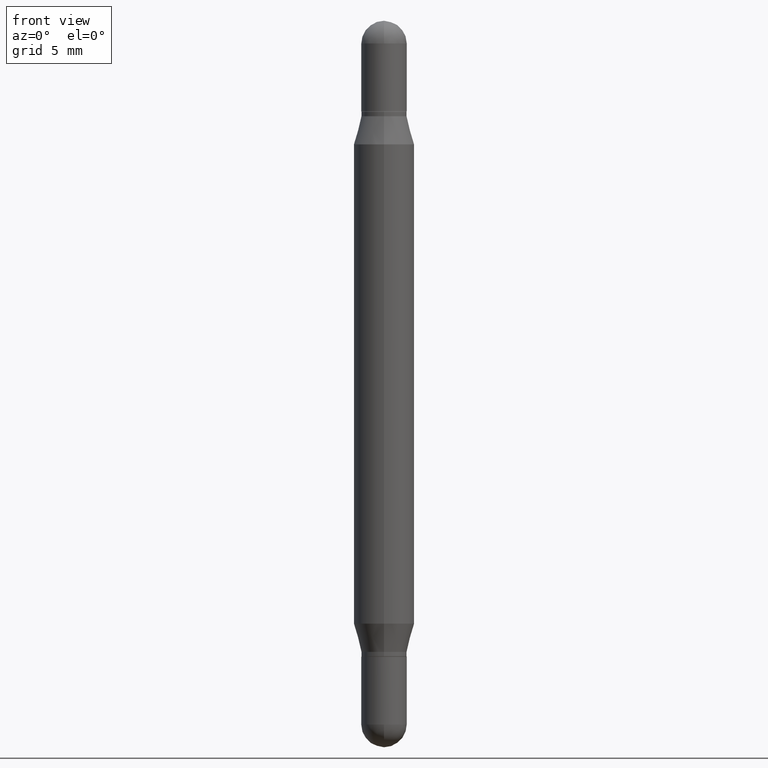
[diagram: clean part render]
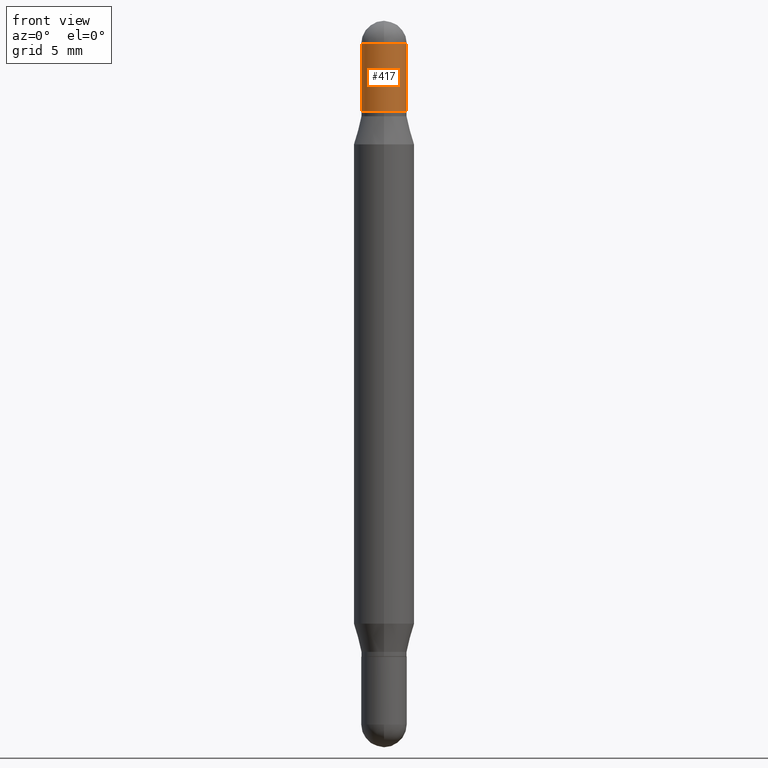
[diagram: same view with one face highlighted and labeled with its STEP entity id]
A machine part, front view. The second image highlights one B-rep face of the part: STEP entity #417.
In plain terms, the highlighted cylindrical surface (edge-blend (fillet) strip) has radius 1.1913 mm, axis along (-0, -0, -1).
Its self-contained STEP definition (entity closure, byte-faithful):
#23 = AXIS2_PLACEMENT_3D ( 'NONE', #565, #1098, #299 ) ;
#24 = LINE ( 'NONE', #369, #956 ) ;
#35 = DIRECTION ( 'NONE',  ( -2.445468806185136597E-29, -3.479614466977828254E-15, -1.000000000000000000 ) ) ;
#166 = VERTEX_POINT ( 'NONE', #896 ) ;
#175 = CARTESIAN_POINT ( 'NONE',  ( 3.210900542521084585E-29, -6.595880592238425060E-16, -0.1870000000000002216 ) ) ;
#210 = CARTESIAN_POINT ( 'NONE',  ( 0.04689999999999999725, -7.433420153955320943E-16, -0.04690000000000053154 ) ) ;
#211 = DIRECTION ( 'NONE',  ( -2.445468806185136877E-29, -3.479614466977828648E-15, -1.000000000000000000 ) ) ;
#228 = CIRCLE ( 'NONE', #436, 0.04689999999999999725 ) ;
#243 = VERTEX_POINT ( 'NONE', #566 ) ;
#290 = CIRCLE ( 'NONE', #882, 0.04689999999999999725 ) ;
#293 = EDGE_CURVE ( 'NONE', #843, #887, #24, .T. ) ;
#299 = DIRECTION ( 'NONE',  ( 1.000000000000000000, -6.982962677686266711E-15, 0.000000000000000000 ) ) ;
#319 = FACE_OUTER_BOUND ( 'NONE', #527, .T. ) ;
#328 = LINE ( 'NONE', #1092, #353 ) ;
#350 = DIRECTION ( 'NONE',  ( 1.000000000000000000, -6.982962677686266711E-15, 0.000000000000000000 ) ) ;
#353 = VECTOR ( 'NONE', #1010, 39.37007874015748143 ) ;
#356 = EDGE_CURVE ( 'NONE', #166, #599, #328, .T. ) ;
#359 = CARTESIAN_POINT ( 'NONE',  ( 3.553510722267622201E-29, -1.720940724002502970E-16, -0.04690000000000053154 ) ) ;
#369 = CARTESIAN_POINT ( 'NONE',  ( 0.04689999999999999725, -5.555822803949218252E-15, -1.500000000000000444 ) ) ;
#396 = ORIENTED_EDGE ( 'NONE', *, *, #1115, .T. ) ;
#404 = AXIS2_PLACEMENT_3D ( 'NONE', #1083, #35, #1069 ) ;
#412 = ORIENTED_EDGE ( 'NONE', *, *, #293, .F. ) ;
#417 = ADVANCED_FACE ( 'NONE', ( #319 ), #1101, .T. ) ;
#436 = AXIS2_PLACEMENT_3D ( 'NONE', #175, #1027, #350 ) ;
#472 = CARTESIAN_POINT ( 'NONE',  ( -0.04689999999999999725, -9.408370971656158891E-17, -0.1870000000000002216 ) ) ;
#527 = EDGE_LOOP ( 'NONE', ( #778, #625, #396, #412, #1051 ) ) ;
#565 = CARTESIAN_POINT ( 'NONE',  ( 3.553510722267622201E-29, -1.720940724002502970E-16, -0.04690000000000053154 ) ) ;
#566 = CARTESIAN_POINT ( 'NONE',  ( -3.275009495834508474E-16, -0.04690000000000024011, -0.04690000000000036501 ) ) ;
#574 = EDGE_CURVE ( 'NONE', #243, #843, #290, .T. ) ;
#599 = VERTEX_POINT ( 'NONE', #472 ) ;
#625 = ORIENTED_EDGE ( 'NONE', *, *, #356, .T. ) ;
#665 = CIRCLE ( 'NONE', #23, 0.04689999999999999725 ) ;
#707 = DIRECTION ( 'NONE',  ( 2.445468806185136597E-29, 3.479614466977828254E-15, 1.000000000000000000 ) ) ;
#757 = CARTESIAN_POINT ( 'NONE',  ( 0.04689999999999999725, -9.870890088073285070E-16, -0.1870000000000002216 ) ) ;
#778 = ORIENTED_EDGE ( 'NONE', *, *, #851, .F. ) ;
#843 = VERTEX_POINT ( 'NONE', #210 ) ;
#851 = EDGE_CURVE ( 'NONE', #166, #243, #665, .T. ) ;
#882 = AXIS2_PLACEMENT_3D ( 'NONE', #359, #707, #886 ) ;
#886 = DIRECTION ( 'NONE',  ( 1.000000000000000000, -6.982962677686266711E-15, 0.000000000000000000 ) ) ;
#887 = VERTEX_POINT ( 'NONE', #757 ) ;
#896 = CARTESIAN_POINT ( 'NONE',  ( -0.04689999999999999725, -9.408370971656128076E-17, -0.04690000000000053154 ) ) ;
#956 = VECTOR ( 'NONE', #211, 39.37007874015748143 ) ;
#1010 = DIRECTION ( 'NONE',  ( -2.445468806185136877E-29, -3.479614466977828648E-15, -1.000000000000000000 ) ) ;
#1027 = DIRECTION ( 'NONE',  ( 2.445468806185136597E-29, 3.479614466977828254E-15, 1.000000000000000000 ) ) ;
#1051 = ORIENTED_EDGE ( 'NONE', *, *, #574, .F. ) ;
#1069 = DIRECTION ( 'NONE',  ( 1.000000000000000000, -6.982962677686277755E-15, 0.000000000000000000 ) ) ;
#1083 = CARTESIAN_POINT ( 'NONE',  ( 0.000000000000000000, -5.228321854365732350E-15, -1.500000000000000444 ) ) ;
#1092 = CARTESIAN_POINT ( 'NONE',  ( -0.04689999999999999725, -4.906564498270247118E-15, -1.500000000000000444 ) ) ;
#1098 = DIRECTION ( 'NONE',  ( 2.445468806185136597E-29, 3.479614466977828254E-15, 1.000000000000000000 ) ) ;
#1101 = CYLINDRICAL_SURFACE ( 'NONE', #404, 0.04689999999999999725 ) ;
#1115 = EDGE_CURVE ( 'NONE', #599, #887, #228, .T. ) ;